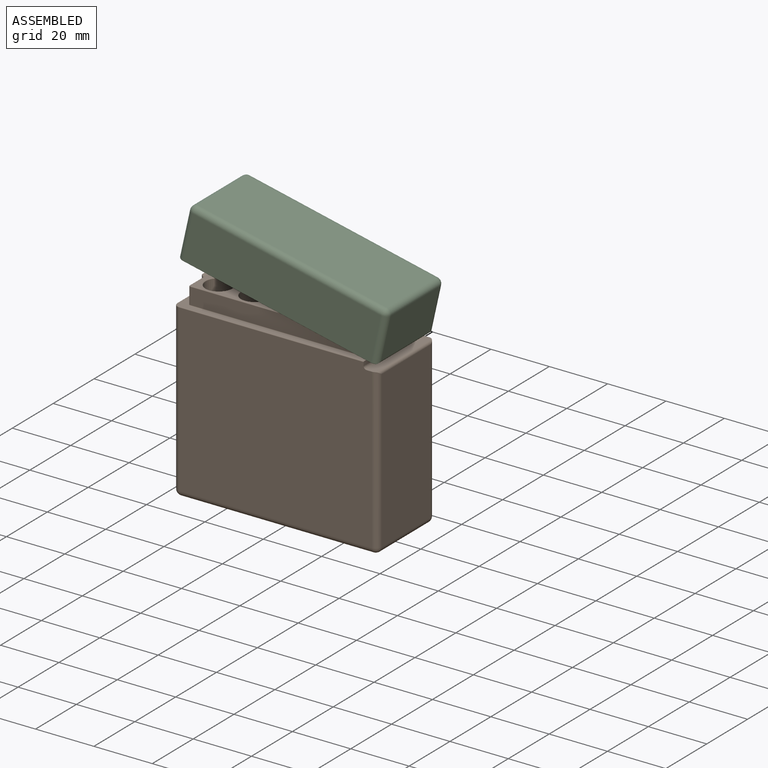
[diagram: assembled view]
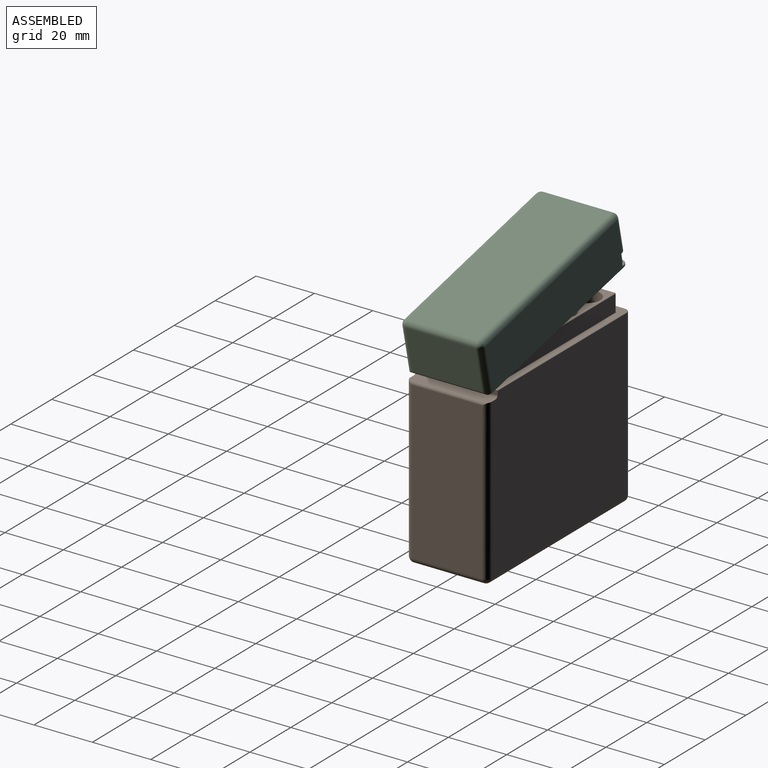
[diagram: assembled view, second angle]
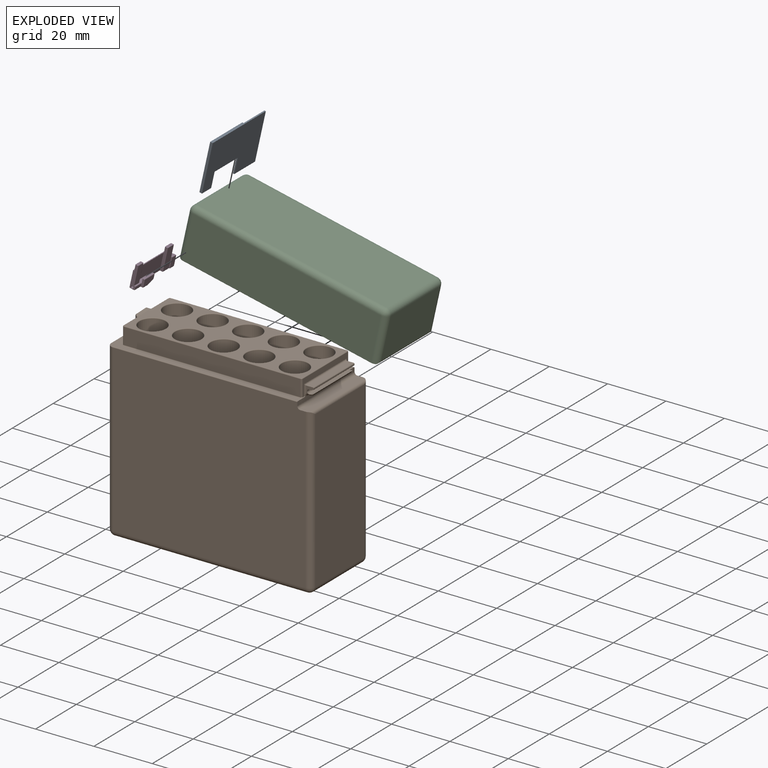
[diagram: exploded view]
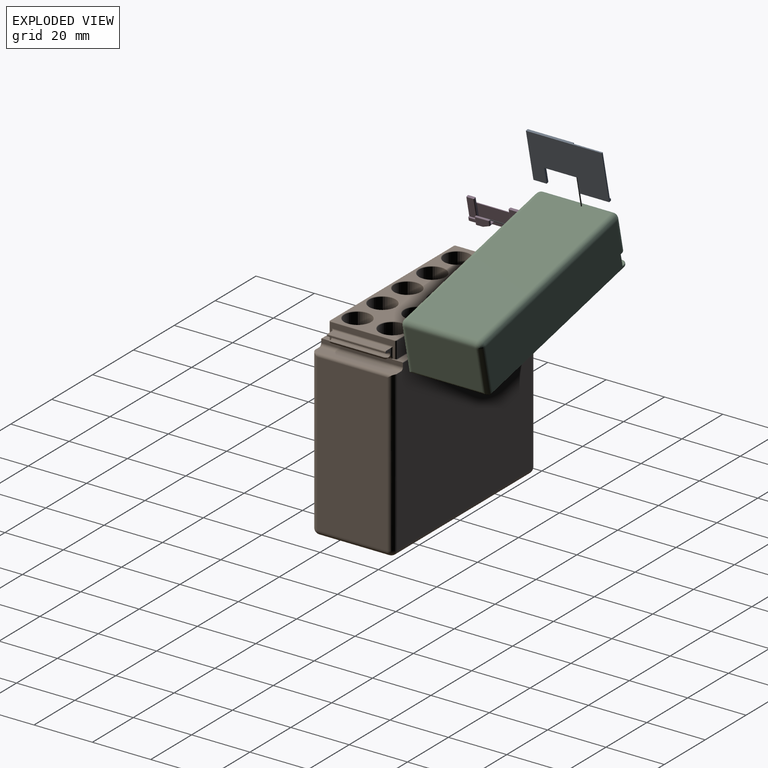
[diagram: exploded view, second angle]
ASSEMBLY  parts=4 mates=3
PART A: 15 faces, bbox 0.9x26x17 mm
  f0: plane 17x10.2mm, normal (-1,0,0), area 172.6mm2, adj f1,f4,f5,f6,f11,f13,f14
  f1: plane 17x0.9mm, normal (0,1,0), area 8.4mm2, adj f0,f5,f6,f9,f12,f13
  f2: plane 5.5x0.9mm, normal (0,1,0), area 5mm2, adj f3,f8,f9,f10
  f3: plane 11.3x0.9mm, normal (0,0,-1), area 10.2mm2, adj f2,f4,f9,f10,f11
  f4: plane 5.5x0.47mm, normal (0,-1,0), area 2.6mm2, adj f0,f3,f5,f9
  f5: plane 10.2x0.9mm, normal (0,0,-1), area 5.3mm2, adj f0,f1,f4,f9,f12,f14
  f6: plane 26x0.9mm, normal (0,0,1), area 19.1mm2, adj f0,f1,f7,f9,f10,f11
  f7: plane 17x0.9mm, normal (0,-1,0), area 15.3mm2, adj f6,f8,f9,f10
  f8: plane 4.5x0.9mm, normal (0,0,-1), area 4mm2, adj f2,f7,f9,f10
  f9: plane 26x17mm, normal (1,0,0), area 379.8mm2, adj f1,f2,f3,f4,f5,f6,f7,f8
  f10: plane 17x15.8mm, normal (-1,0,0), area 206.5mm2, adj f2,f3,f6,f7,f8,f11
  f11: plane 11.5x0.43mm, normal (0,1,0), area 4.9mm2, adj f0,f3,f6,f10
  f12: plane 1x0.8mm, normal (-1,0,0), area 0.8mm2, adj f1,f5,f13,f14
  f13: plane 1x0.43mm, normal (0,0,1), area 0.4mm2, adj f0,f1,f12,f14
  f14: plane 0.8x0.43mm, normal (0,-1,0), area 0.3mm2, adj f0,f5,f12,f13
PART B: 162 faces, bbox 70.9x29.1x65.7 mm
  f0: plane 66x56.8mm, normal (0,-1,0), area 3742.9mm2, adj f59,f64,f65,f72,f149,f150,f153
  f1: plane 20.64x1.75mm, normal (-0.21,0,0.98), area 20.3mm2, adj f52,f152,f154,f155,f156,f158
  f2: plane 2.5x2.1mm, normal (0,-1,0), area 2.8mm2, adj f5,f52,f53,f54,f55,f56,f97,f155
  f3: plane 2.5x2.1mm, normal (0,1,0), area 2.8mm2, adj f4,f52,f53,f54,f55,f56,f97,f154
  f4: cylinder r=0.5mm len=3.8mm, axis (0,0,-1), area 2.6mm2, adj f3,f12,f98,f99,f153,f161
  f5: cylinder r=0.5mm len=3.8mm, axis (0,0,1), area 2.6mm2, adj f2,f12,f99,f100,f153,f159
  f6: bspline ~0.54x0.54mm, area 0.1mm2, adj f77,f78,f101
  f7: bspline ~0.54x0.54mm, area 0.1mm2, adj f74,f75,f104
  f8: bspline ~0.54x0.54mm, area 0.1mm2, adj f76,f77,f107
  f9: bspline ~0.54x0.54mm, area 0.1mm2, adj f75,f76,f110
  f10: plane 62.72x22.6mm, normal (0,0,1), area 688.1mm2, adj f79,f80,f81,f82,f83,f84,f85,f86
  f11: plane 65x27.6mm, normal (0,0,1), area 344.2mm2, adj f69,f70,f71,f72,f73,f75,f76,f77
  f12: plane 22x5.6mm, normal (1,0,0), area 43.4mm2, adj f4,f5,f74,f78,f81,f99,f102,f105
  f13: plane 2.6x2.1mm, normal (0,1,0), area 3.3mm2, adj f82,f114,f115,f123,f127,f129,f130
  f14: plane 60.5x5.6mm, normal (0,-1,0), area 338.8mm2, adj f75,f83,f105,f111
  f15: plane 56.8x24mm, normal (-1,0,0), area 1363.2mm2, adj f57,f58,f59,f71
  f16: plane 53.6x24mm, normal (1,0,0), area 1286.4mm2, adj f62,f65,f68,f151
  f17: plane 66x56.8mm, normal (0,1,0), area 3742.9mm2, adj f57,f62,f63,f69,f149,f150,f153
  f18: cylinder r=4.5mm len=59.8mm, axis (0,0,-1), area 1690.8mm2, adj f28,f96
  f19: cylinder r=4.5mm len=59.8mm, axis (0,0,-1), area 1690.8mm2, adj f29,f95
  f20: cylinder r=4.5mm len=59.8mm, axis (0,0,-1), area 1690.8mm2, adj f30,f94
  f21: cylinder r=4.5mm len=59.8mm, axis (0,0,-1), area 1690.8mm2, adj f31,f93
  f22: cylinder r=4.5mm len=59.8mm, axis (0,0,-1), area 1690.8mm2, adj f32,f92
  f23: cylinder r=4.5mm len=59.8mm, axis (0,0,-1), area 1690.8mm2, adj f33,f91
  f24: cylinder r=4.5mm len=59.8mm, axis (0,0,-1), area 1690.8mm2, adj f34,f90
  f25: cylinder r=4.5mm len=59.8mm, axis (0,0,-1), area 1690.8mm2, adj f35,f89
  f26: cylinder r=4.5mm len=59.8mm, axis (0,0,-1), area 1690.8mm2, adj f36,f88
  f27: cylinder r=4.5mm len=59.8mm, axis (0,0,-1), area 1690.8mm2, adj f37,f87
  f28: plane 9x9mm, normal (0,0,1), area 63.6mm2, adj f18
  f29: plane 9x9mm, normal (0,0,1), area 63.6mm2, adj f19
  f30: plane 9x9mm, normal (0,0,1), area 63.6mm2, adj f20
  f31: plane 9x9mm, normal (0,0,1), area 63.6mm2, adj f21
  f32: plane 9x9mm, normal (0,0,1), area 63.6mm2, adj f22
  f33: plane 9x9mm, normal (0,0,1), area 63.6mm2, adj f23
  f34: plane 9x9mm, normal (0,0,1), area 63.6mm2, adj f24
  f35: plane 9x9mm, normal (0,0,1), area 63.6mm2, adj f25
  f36: plane 9x9mm, normal (0,0,1), area 63.6mm2, adj f26
  f37: plane 9x9mm, normal (0,0,1), area 63.6mm2, adj f27
  f38: plane 66x24mm, normal (0,0,-1), area 1584mm2, adj f58,f63,f64,f68
  f39: plane 60.5x5.6mm, normal (0,1,0), area 338.8mm2, adj f77,f79,f102,f108
  f40: plane 22x5.6mm, normal (-1,0,0), area 115.9mm2, adj f76,f80,f85,f108,f111,f129,f134,f137
  f41: plane 4.68x1.1mm, normal (0,0,-1), area 4.7mm2, adj f43,f51,f116,f117,f123
  f42: plane 3.72x1.72mm, normal (-1,0,0), area 6.4mm2, adj f115,f117,f121,f122
  f43: plane 4.34x1.5mm, normal (1,0,0), area 6.5mm2, adj f41,f44,f50,f51,f127
  f44: plane 4.3x1mm, normal (0,0,-1), area 4.3mm2, adj f43,f50,f130,f137
  f45: plane 3.74x0.88mm, normal (-0.71,0,0.71), area 3.3mm2, adj f84,f114,f122,f128,f132,f133
  f46: plane 1.24x0.11mm, normal (0,-0.71,0.71), area 0.2mm2, adj f50,f138,f142,f143
  f47: plane 0.84x0.84mm, normal (-0.58,-0.58,0.58), area 0.2mm2, adj f132,f135,f138,f139
  f48: plane 1.74x0.94mm, normal (-0.71,-0.71,0), area 2.3mm2, adj f51,f116,f121,f128,f135
  f49: plane 3.77x2.18mm, normal (0,-0.22,0.98), area 6.1mm2, adj f86,f133,f139,f143,f145,f146
  f50: cylinder r=0.5mm len=1.3mm, axis (1,0,0), area 0.9mm2, adj f43,f44,f46,f51,f135,f138,f140
  f51: cylinder r=0.5mm len=1.97mm, axis (0,0,-1), area 0.9mm2, adj f41,f43,f48,f50,f116,f135
  f52: cylinder r=0.75mm len=20mm, axis (0,1,0), area 58.3mm2, adj f1,f2,f3,f53,f154,f155
  f53: plane 20x0.98mm, normal (0.34,0,-0.94), area 20.9mm2, adj f2,f3,f52,f97
  f54: plane 20x0.26mm, normal (1,0,0), area 5.2mm2, adj f2,f3,f55,f97
  f55: cylinder r=0.3mm len=20mm, axis (0,1,0), area 9.4mm2, adj f2,f3,f54,f56
  f56: plane 20x2.2mm, normal (0,0,1), area 44mm2, adj f2,f3,f55,f99
  f57: cylinder r=2mm len=56.8mm, axis (0,0,1), area 178.4mm2, adj f15,f17,f60,f70
  f58: cylinder r=2mm len=24mm, axis (0,1,0), area 75.4mm2, adj f15,f38,f60,f61
  f59: cylinder r=2mm len=56.8mm, axis (0,0,-1), area 178.4mm2, adj f0,f15,f61,f73
  f60: sphere r=2mm, area 8.6mm2, adj f57,f58,f63
  f61: sphere r=2mm, area 6.3mm2, adj f58,f59,f64
  f62: cylinder r=2mm len=54.6mm, axis (0,0,-1), area 170.5mm2, adj f16,f17,f66,f150,f151
  f63: cylinder r=2mm len=66mm, axis (1,0,0), area 207.3mm2, adj f17,f38,f60,f66
  f64: cylinder r=2mm len=66mm, axis (-1,0,0), area 207.3mm2, adj f0,f38,f61,f67
  f65: cylinder r=2mm len=54.6mm, axis (0,0,1), area 170.5mm2, adj f0,f16,f67,f150,f151
  f66: sphere r=2mm, area 4mm2, adj f62,f63,f68
  f67: sphere r=2mm, area 6.3mm2, adj f64,f65,f68
  f68: cylinder r=2mm len=24mm, axis (0,-1,0), area 75.4mm2, adj f16,f38,f66,f67
  f69: cylinder r=0.2mm len=63.2mm, axis (1,0,0), area 19.9mm2, adj f11,f17,f70,f153
  f70: torus R=1.8mm, axis (0,0,1), area 1mm2, adj f11,f57,f69,f71
  f71: cylinder r=0.2mm len=24mm, axis (0,-1,0), area 7.5mm2, adj f11,f15,f70,f73
  f72: cylinder r=0.2mm len=63.2mm, axis (-1,0,0), area 19.9mm2, adj f0,f11,f73,f153
  f73: torus R=1.8mm, axis (0,0,1), area 1mm2, adj f11,f59,f71,f72
  f74: cylinder r=0.2mm len=1.2mm, axis (0,-1,0), area 0.2mm2, adj f7,f12,f100,f104,f153
  f75: cylinder r=0.2mm len=61.9mm, axis (-1,0,0), area 19.2mm2, adj f7,f9,f11,f14,f104,f110
  f76: cylinder r=0.2mm len=23.4mm, axis (0,1,0), area 7.1mm2, adj f8,f9,f11,f40,f107,f110
  f77: cylinder r=0.2mm len=61.9mm, axis (1,0,0), area 19.2mm2, adj f6,f8,f11,f39,f101,f107
  f78: cylinder r=0.2mm len=1.2mm, axis (0,-1,0), area 0.2mm2, adj f6,f12,f98,f101,f153
  f79: cylinder r=0.2mm len=60.5mm, axis (1,0,0), area 19mm2, adj f10,f39,f103,f109
  f80: cylinder r=0.2mm len=8.7mm, axis (0,-1,0), area 2.7mm2, adj f10,f40,f109,f126
  f81: cylinder r=0.2mm len=22mm, axis (0,1,0), area 6.9mm2, adj f10,f12,f103,f106
  f82: cylinder r=0.2mm len=1.62mm, axis (1,0,0), area 0.4mm2, adj f10,f13,f113,f126
  f83: cylinder r=0.2mm len=60.5mm, axis (1,0,0), area 19mm2, adj f10,f14,f106,f112
  f84: cylinder r=0.2mm len=0.78mm, axis (0,-1,0), area 0.1mm2, adj f10,f45,f113,f125
  f85: cylinder r=0.2mm len=12.52mm, axis (0,-1,0), area 3.7mm2, adj f10,f40,f112,f146,f147
  f86: cylinder r=0.2mm len=1.62mm, axis (1,0,0), area 0.1mm2, adj f10,f49,f125,f147
  f87: torus R=4.7mm, axis (0,0,1), area 9mm2, adj f10,f27
  f88: torus R=4.7mm, axis (0,0,1), area 9mm2, adj f10,f26
  f89: torus R=4.7mm, axis (0,0,1), area 9mm2, adj f10,f25
  f90: torus R=4.7mm, axis (0,0,1), area 9mm2, adj f10,f24
  f91: torus R=4.7mm, axis (0,0,1), area 9mm2, adj f10,f23
  f92: torus R=4.7mm, axis (0,0,1), area 9mm2, adj f10,f22
  f93: torus R=4.7mm, axis (0,0,1), area 9mm2, adj f10,f21
  f94: torus R=4.7mm, axis (0,0,1), area 9mm2, adj f10,f20
  f95: torus R=4.7mm, axis (0,0,1), area 9mm2, adj f10,f19
  f96: torus R=4.7mm, axis (0,0,1), area 9mm2, adj f10,f18
  f97: cylinder r=0.2mm len=20mm, axis (0,1,0), area 4.9mm2, adj f2,f3,f53,f54
  f98: torus R=0.3mm, axis (0,0,1), area 0.1mm2, adj f4,f78,f153
  f99: cylinder r=0.5mm len=21mm, axis (0,1,0), area 16.1mm2, adj f4,f5,f12,f56
  f100: torus R=0.3mm, axis (0,0,1), area 0.1mm2, adj f5,f74,f153
  f101: bspline ~0.56x0.56mm, area 0.1mm2, adj f6,f77,f78,f102
  f102: cylinder r=0.5mm len=5.6mm, axis (0,0,1), area 4.4mm2, adj f12,f39,f101,f103
  f103: torus R=0.3mm, axis (0,0,1), area 0.2mm2, adj f10,f79,f81,f102
  f104: bspline ~0.56x0.56mm, area 0.1mm2, adj f7,f74,f75,f105
  f105: cylinder r=0.5mm len=5.6mm, axis (0,0,1), area 4.4mm2, adj f12,f14,f104,f106
  f106: torus R=0.3mm, axis (0,0,1), area 0.2mm2, adj f10,f81,f83,f105
  f107: bspline ~0.56x0.56mm, area 0.1mm2, adj f8,f76,f77,f108
  f108: cylinder r=0.5mm len=5.6mm, axis (0,0,-1), area 4.4mm2, adj f39,f40,f107,f109
  f109: torus R=0.3mm, axis (0,0,1), area 0.2mm2, adj f10,f79,f80,f108
  f110: bspline ~0.56x0.56mm, area 0.1mm2, adj f9,f75,f76,f111
  f111: cylinder r=0.5mm len=5.6mm, axis (0,0,-1), area 4.4mm2, adj f14,f40,f110,f112
  f112: torus R=0.3mm, axis (0,0,1), area 0.2mm2, adj f10,f83,f85,f111
  f113: sphere r=0.2mm, area 0mm2, adj f82,f84,f114
  f114: cylinder r=0.2mm len=1.02mm, axis (-0.71,0,-0.71), area 0.4mm2, adj f13,f45,f113,f119
  f115: cylinder r=0.2mm len=1.72mm, axis (0,0,-1), area 0.5mm2, adj f13,f42,f119,f120
  f116: cylinder r=0.2mm len=1.11mm, axis (-0.71,0.71,0), area 0.4mm2, adj f41,f48,f51,f118
  f117: cylinder r=0.2mm len=3.72mm, axis (0,-1,0), area 1.2mm2, adj f41,f42,f118,f120
  f118: sphere r=0.2mm, area 0mm2, adj f116,f117,f121
  f119: sphere r=0.2mm, area 0mm2, adj f114,f115,f122
  f120: sphere r=0.2mm, area 0.1mm2, adj f115,f117,f123
  f121: cylinder r=0.2mm len=1.72mm, axis (0,0,-1), area 0.3mm2, adj f42,f48,f118,f124
  f122: cylinder r=0.2mm len=3.72mm, axis (0,-1,0), area 0.6mm2, adj f42,f45,f119,f124
  f123: cylinder r=0.2mm len=1.1mm, axis (1,0,0), area 0.3mm2, adj f13,f41,f120,f127
  f124: sphere r=0.2mm, area 0mm2, adj f121,f122,f128
  f125: sphere r=0.2mm, area 0mm2, adj f84,f86,f133
  f126: bspline ~0.4x0.4mm, area 0mm2, adj f80,f82,f129
  f127: cylinder r=0.2mm len=1.7mm, axis (0,0,1), area 0.5mm2, adj f13,f43,f123,f130
  f128: cylinder r=0.2mm len=0.16mm, axis (-0.58,0.58,-0.58), area 0mm2, adj f45,f48,f124,f131
  f129: cylinder r=0.2mm len=1.1mm, axis (0,0,-1), area 0.3mm2, adj f13,f40,f126,f134
  f130: cylinder r=0.2mm len=1.2mm, axis (1,0,0), area 0.3mm2, adj f13,f44,f127,f134
  f131: sphere r=0.2mm, area 0mm2, adj f128,f132,f135
  f132: cylinder r=0.2mm len=0.24mm, axis (-0.71,0,-0.71), area 0mm2, adj f45,f47,f131,f136
  f133: cylinder r=0.2mm len=3mm, axis (0.21,0.95,0.21), area 0.5mm2, adj f45,f49,f125,f136
  f134: torus R=0.4mm, axis (-1,0,0), area 0.1mm2, adj f40,f129,f130,f137
  f135: cylinder r=0.2mm len=0.95mm, axis (-0.71,0.71,0), area 0.2mm2, adj f47,f48,f50,f51,f131,f138
  f136: sphere r=0.2mm, area 0mm2, adj f132,f133,f139
  f137: cylinder r=0.2mm len=4.3mm, axis (0,-1,0), area 1.4mm2, adj f40,f44,f134,f140
  f138: cylinder r=0.2mm len=0.14mm, axis (0,-0.71,-0.71), area 0mm2, adj f46,f47,f50,f135,f141
  f139: cylinder r=0.2mm len=0.88mm, axis (-0.61,0.78,0.17), area 0.2mm2, adj f47,f49,f136,f141
  f140: torus R=0.7mm, axis (-1,0,0), area 0.3mm2, adj f40,f50,f137,f142
  f141: sphere r=0.2mm, area 0mm2, adj f138,f139,f143
  f142: cylinder r=0.2mm len=0.3mm, axis (0,-0.71,-0.71), area 0.1mm2, adj f40,f46,f140,f144
  f143: cylinder r=0.2mm len=1.24mm, axis (1,0,0), area 0.1mm2, adj f46,f49,f141,f144
  f144: torus R=0.4mm, axis (-1,0,0), area 0mm2, adj f40,f142,f143,f145
  f145: cylinder r=0.2mm len=2.04mm, axis (0,0.98,0.22), area 0.6mm2, adj f40,f49,f144,f146
  f146: bspline ~1.93x0.42mm, area 0.4mm2, adj f49,f85,f145,f147
  f147: bspline ~0.13x0.13mm, area 0mm2, adj f85,f86,f146
  f148: plane 18x1.09mm, normal (0,0,-1), area 19.6mm2, adj f154,f155,f157,f160
  f149: cylinder r=1mm len=28mm, axis (0,-1,0), area 44mm2, adj f0,f17,f150,f153
  f150: plane 28x2.8mm, normal (0,0,1), area 78.2mm2, adj f0,f17,f62,f65,f149,f151
  f151: cylinder r=1mm len=27.46mm, axis (0,-1,0), area 40.4mm2, adj f16,f62,f65,f150
  f152: plane 19.32x1.19mm, normal (0.87,0,-0.49), area 10mm2, adj f1,f156,f157,f158
  f153: plane 28.23x2.01mm, normal (1,0,0), area 37.5mm2, adj f0,f4,f5,f11,f17,f69,f72,f74
  f154: cylinder r=1mm len=1.2mm, axis (-1,0,0), area 1.5mm2, adj f1,f3,f52,f148,f158,f161
  f155: cylinder r=1mm len=1.2mm, axis (1,0,0), area 1.5mm2, adj f1,f2,f52,f148,f156,f159
  f156: bspline ~2x1.41mm, area 1mm2, adj f1,f152,f155,f157
  f157: cylinder r=0.7mm len=18mm, axis (0,-1,0), area 13.3mm2, adj f148,f152,f156,f158
  f158: bspline ~1.73x1mm, area 1mm2, adj f1,f152,f154,f157
  f159: torus R=1.5mm, axis (-1,0,0), area 1.1mm2, adj f2,f5,f153,f155,f160
  f160: cylinder r=0.5mm len=18mm, axis (0,-1,0), area 14.1mm2, adj f148,f153,f159,f161
  f161: torus R=1.5mm, axis (-1,0,0), area 1.1mm2, adj f3,f4,f153,f154,f160
PART C: 64 faces, bbox 70.2x28.3x18 mm
  f0: plane 17x15.8mm, normal (1,0,0), area 142.8mm2, adj f1,f2,f8,f17,f24,f28,f32,f61
  f1: plane 25.8x2.26mm, normal (0,0,1), area 32.4mm2, adj f0,f11,f12,f17,f23,f26,f46,f56
  f2: plane 68.8x27.6mm, normal (0,0,-1), area 305.1mm2, adj f0,f6,f7,f9,f10,f12,f19,f26
  f3: plane 24x14.97mm, normal (1,0,0), area 359.4mm2, adj f4,f5,f36,f60
  f4: cylinder r=2mm len=15.8mm, axis (0,0,-1), area 49.2mm2, adj f3,f7,f15,f35,f59,f60
  f5: cylinder r=2mm len=15.8mm, axis (0,0,-1), area 49.2mm2, adj f3,f6,f14,f39,f59,f60
  f6: torus R=1.8mm, axis (0,0,-1), area 0.5mm2, adj f2,f5,f47,f59
  f7: torus R=1.8mm, axis (0,0,-1), area 0.5mm2, adj f2,f4,f51,f59
  f8: plane 26x1mm, normal (0,0,-1), area 21.7mm2, adj f0,f26,f27,f28,f31,f32
  f9: plane 65x16mm, normal (0,1,0), area 1038.5mm2, adj f2,f18,f19,f21,f27
  f10: plane 65x16mm, normal (0,-1,0), area 1038.5mm2, adj f2,f18,f19,f21,f27
  f11: plane 4x0.8mm, normal (-1,0,0.01), area 3.2mm2, adj f1,f22,f26,f55
  f12: plane 10.2x0.8mm, normal (1,0,0), area 8.2mm2, adj f1,f2,f26,f63
  f13: plane 24x15.8mm, normal (-1,0,0), area 353.2mm2, adj f38,f42,f44,f45,f46,f49,f52,f58
  f14: plane 66x15.8mm, normal (0,1,0), area 1039.8mm2, adj f5,f41,f44,f45,f47,f54,f55,f56
  f15: plane 66x15.8mm, normal (0,-1,0), area 1042.8mm2, adj f4,f37,f38,f51
  f16: plane 66x24mm, normal (0,0,1), area 1584mm2, adj f36,f37,f41,f42
  f17: plane 8.2x1.4mm, normal (0,1,0), area 10.7mm2, adj f0,f1,f23,f24,f25,f29,f33
  f18: plane 65x24mm, normal (0,0,-1), area 1560mm2, adj f9,f10,f19,f27
  f19: plane 24x16mm, normal (-1,0,0), area 384mm2, adj f2,f9,f10,f18
  f20: plane 4.2x1.63mm, normal (0,-1,0), area 6.8mm2, adj f22,f24,f25,f31
  f21: cylinder r=0.7mm len=24mm, axis (0,-1,0), area 105.6mm2, adj f9,f10
  f22: plane 7.12x2.3mm, normal (0,0,-1), area 6mm2, adj f11,f20,f23,f25,f26,f31,f34,f46
  f23: plane 21.2x6.2mm, normal (1,0,0), area 122.6mm2, adj f1,f17,f22,f33,f34,f46
  f24: plane 24x1.63mm, normal (0,0,-1), area 32.7mm2, adj f0,f17,f20,f25,f31,f32
  f25: plane 24x4.2mm, normal (1,0,0), area 54.2mm2, adj f17,f20,f22,f24,f33,f34
  f26: plane 17x1mm, normal (0,-1,0), area 9.9mm2, adj f1,f2,f8,f11,f12,f22,f27,f31
  f27: plane 26x17mm, normal (-1,0,0), area 58mm2, adj f2,f8,f9,f10,f18,f26,f28
  f28: plane 17x1mm, normal (0,1,0), area 17mm2, adj f0,f2,f8,f27
  f29: cylinder r=0.35mm len=6mm, axis (0,-1,0), area 13.2mm2, adj f17,f30
  f30: plane 0.7x0.7mm, normal (0,1,0), area 0.4mm2, adj f29
  f31: plane 12.2x10.2mm, normal (1,0,0), area 85.8mm2, adj f8,f20,f22,f24,f26,f32
  f32: plane 8x0.43mm, normal (0,-1,0), area 3.4mm2, adj f0,f8,f24,f31
  f33: plane 21.2x0.2mm, normal (0,0,-1), area 4.2mm2, adj f17,f23,f25,f34
  f34: plane 2.2x0.2mm, normal (0,-1,0), area 0.4mm2, adj f22,f23,f25,f33
  f35: sphere r=2mm, area 6.3mm2, adj f4,f36,f37
  f36: cylinder r=2mm len=24mm, axis (0,1,0), area 75.4mm2, adj f3,f16,f35,f39
  f37: cylinder r=2mm len=66mm, axis (1,0,0), area 207.3mm2, adj f15,f16,f35,f40
  f38: cylinder r=2mm len=15.8mm, axis (0,0,1), area 49.6mm2, adj f13,f15,f40,f50
  f39: sphere r=2mm, area 6.3mm2, adj f5,f36,f41
  f40: sphere r=2mm, area 6.3mm2, adj f37,f38,f42
  f41: cylinder r=2mm len=66mm, axis (1,0,0), area 207.3mm2, adj f14,f16,f39,f43
  f42: cylinder r=2mm len=24mm, axis (0,-1,0), area 75.4mm2, adj f13,f16,f40,f43
  f43: sphere r=2mm, area 6.3mm2, adj f41,f42,f44
  f44: cylinder r=2mm len=11mm, axis (0,0,1), area 34.6mm2, adj f13,f14,f43,f53
  f45: cylinder r=2mm len=2mm, axis (0,0,1), area 1.3mm2, adj f13,f14,f48,f57
  f46: cylinder r=1mm len=4.4mm, axis (0,0,1), area 4.8mm2, adj f1,f13,f22,f23,f52,f58
  f47: cylinder r=0.2mm len=66mm, axis (-1,0,0), area 20.7mm2, adj f2,f6,f14,f48
  f48: torus R=1.8mm, axis (0,0,-1), area 1mm2, adj f2,f45,f47,f49
  f49: cylinder r=0.2mm len=24mm, axis (0,1,0), area 7.5mm2, adj f2,f13,f48,f50
  f50: torus R=1.8mm, axis (0,0,-1), area 1mm2, adj f2,f38,f49,f51
  f51: cylinder r=0.2mm len=66mm, axis (-1,0,0), area 20.7mm2, adj f2,f7,f15,f50
  f52: cylinder r=0.2mm len=5.92mm, axis (0,1,0), area 1.8mm2, adj f13,f22,f46,f53
  f53: torus R=1.8mm, axis (0,0,-1), area 1mm2, adj f22,f44,f52,f54
  f54: cylinder r=0.2mm len=0.7mm, axis (-1,0,0), area 0.2mm2, adj f14,f22,f53,f55
  f55: cylinder r=0.2mm len=4.4mm, axis (0.01,0,1), area 1.3mm2, adj f11,f14,f54,f56
  f56: cylinder r=0.2mm len=0.65mm, axis (1,0,0), area 0.2mm2, adj f1,f14,f55,f57
  f57: torus R=1.8mm, axis (0,0,1), area 1mm2, adj f1,f45,f56,f58
  f58: cylinder r=0.2mm len=5.92mm, axis (0,1,0), area 1.8mm2, adj f1,f13,f46,f57
  f59: cylinder r=1mm len=26.99mm, axis (0,-1,0), area 41.3mm2, adj f2,f4,f5,f6,f7,f60
  f60: plane 24.07x0mm, normal (0,0,-1), area 0mm2, adj f3,f4,f5,f59
  f61: plane 1.1x0.8mm, normal (0,1,0), area 0.9mm2, adj f0,f1,f2,f62
  f62: plane 5.6x0.8mm, normal (1,0,0), area 4.5mm2, adj f1,f2,f61,f63
  f63: plane 1.1x0.8mm, normal (0,-1,0), area 0.9mm2, adj f1,f2,f12,f62
PART D: 66 faces, bbox 3.3x19.6x8.1 mm
  f0: plane 2.3x2mm, normal (-1,0,0), area 4.6mm2, adj f22,f30,f36,f40
  f1: plane 2.8x2mm, normal (-1,0,0), area 5.6mm2, adj f24,f25,f30,f34
  f2: plane 11.8x6mm, normal (1,0,0), area 65.2mm2, adj f7,f9,f20,f27,f30,f33,f44,f58
  f3: plane 19.12x6mm, normal (-1,0,0), area 105.2mm2, adj f7,f14,f17,f25,f30,f31,f32,f65
  f4: plane 1.8x0.1mm, normal (1,0,0), area 0.2mm2, adj f7,f16,f23,f32
  f5: plane 2.5x0.6mm, normal (0,-1,0), area 1.2mm2, adj f13,f45,f47,f50,f52,f61
  f6: plane 3.7x0.45mm, normal (0,1,0), area 1.7mm2, adj f15,f16,f18,f32
  f7: plane 19.1x2.4mm, normal (0,0,-1), area 17.3mm2, adj f2,f3,f4,f23,f26,f27,f32,f35
  f8: plane 1.56x0.4mm, normal (0,1,0), area 0.6mm2, adj f46,f56,f59,f60
  f9: plane 7.8x1.5mm, normal (0,0,1), area 8.4mm2, adj f2,f10,f14,f20,f21,f37,f38,f58
  f10: plane 4.6x1.4mm, normal (-1,0,0), area 6.4mm2, adj f9,f45,f55,f60
  f11: plane 4.6x0.4mm, normal (0,0,1), area 1.8mm2, adj f46,f47,f48,f55
  f12: plane 4.6x2.5mm, normal (1,0,0), area 10.4mm2, adj f41,f42,f48,f50,f56
  f13: plane 2.8x0.9mm, normal (1,0,0), area 2.5mm2, adj f5,f39,f62,f63
  f14: plane 7.8x1.6mm, normal (0,-1,0), area 7.5mm2, adj f3,f9,f22,f28,f30,f38,f40,f63
  f15: plane 3.7x2mm, normal (1,0,0), area 7.4mm2, adj f6,f16,f18,f19
  f16: plane 2x1.33mm, normal (0,0,-1), area 2.6mm2, adj f4,f6,f15,f19,f23,f32
  f17: plane 1.62x0.6mm, normal (0,0,-1), area 0.6mm2, adj f3,f31,f32
  f18: plane 2.23x2mm, normal (0,0,1), area 3.7mm2, adj f6,f15,f19,f25,f31,f32
  f19: plane 3.7x0.33mm, normal (0,-1,0), area 1.2mm2, adj f15,f16,f18,f26
  f20: plane 6.7x0.8mm, normal (0,1,0), area 5mm2, adj f2,f9,f22,f30,f36,f37
  f21: plane 6.7x2.3mm, normal (1,0,0), area 15.4mm2, adj f9,f22,f37,f38
  f22: plane 2.7x1mm, normal (0,0,1), area 2.7mm2, adj f0,f14,f20,f21,f36,f37,f38,f40
  f23: plane 1x0.1mm, normal (0,1,0), area 0.1mm2, adj f4,f7,f16,f26
  f24: plane 3x1mm, normal (0,0,1), area 3mm2, adj f1,f25,f26,f27,f34,f35
  f25: plane 4.2x1.3mm, normal (0,1,0), area 4.9mm2, adj f1,f3,f18,f24,f26,f30
  f26: plane 8x2.8mm, normal (1,0,0), area 22.4mm2, adj f7,f19,f23,f24,f25,f35
  f27: plane 8x0.8mm, normal (0,-1,0), area 6mm2, adj f2,f7,f24,f30,f34,f35
  f28: cylinder r=0.45mm len=2mm, axis (0,-1,0), area 5.7mm2, adj f14,f29
  f29: plane 0.9x0.9mm, normal (0,-1,0), area 0.6mm2, adj f28
  f30: plane 17.5x0.5mm, normal (0,0,1), area 5.3mm2, adj f0,f1,f2,f3,f14,f20,f25,f27
  f31: cylinder r=1mm len=3.7mm, axis (0,0,1), area 4.3mm2, adj f3,f17,f18,f32
  f32: cylinder r=2mm len=3.8mm, axis (0,0,1), area 8.1mm2, adj f3,f4,f6,f7,f16,f17,f18,f31
  f33: plane 2.34x2.1mm, normal (0,0.37,-0.93), area 5.3mm2, adj f2,f42,f44,f59
  f34: cylinder r=0.2mm len=2mm, axis (0,0,-1), area 0.6mm2, adj f1,f24,f27,f30
  f35: cylinder r=0.2mm len=8mm, axis (0,0,1), area 2.5mm2, adj f7,f24,f26,f27
  f36: cylinder r=0.2mm len=2mm, axis (0,0,1), area 0.6mm2, adj f0,f20,f22,f30
  f37: cylinder r=0.2mm len=6.7mm, axis (0,0,-1), area 2.1mm2, adj f9,f20,f21,f22
  f38: cylinder r=0.2mm len=6.7mm, axis (0,0,-1), area 2.1mm2, adj f9,f14,f21,f22
  f39: cylinder r=0.2mm len=3mm, axis (0,1,0), area 0.9mm2, adj f7,f13,f52,f64
  f40: cylinder r=0.2mm len=2mm, axis (0,0,1), area 0.6mm2, adj f0,f14,f22,f30
  f41: cylinder r=0.2mm len=2.26mm, axis (0,1,0), area 0.7mm2, adj f7,f12,f43,f51
  f42: plane 2.61x1.22mm, normal (0.71,0.26,-0.66), area 0.7mm2, adj f12,f33,f43,f56,f59
  f43: bspline ~0.2x0.2mm, area 0mm2, adj f41,f42,f44
  f44: plane 2.1x0.07mm, normal (0,0.19,-0.98), area 0.2mm2, adj f2,f7,f33,f43
  f45: cylinder r=0.2mm len=1.6mm, axis (0,0,1), area 0.5mm2, adj f5,f10,f53,f61
  f46: cylinder r=0.2mm len=0.4mm, axis (1,0,0), area 0.1mm2, adj f8,f11,f54,f57
  f47: cylinder r=0.2mm len=0.4mm, axis (1,0,0), area 0.1mm2, adj f5,f11,f49,f53
  f48: cylinder r=0.2mm len=4.6mm, axis (0,-1,0), area 1.4mm2, adj f11,f12,f49,f54
  f49: sphere r=0.2mm, area 0mm2, adj f47,f48,f50
  f50: cylinder r=0.2mm len=2.5mm, axis (0,0,-1), area 0.8mm2, adj f5,f12,f49,f51
  f51: sphere r=0.2mm, area 0mm2, adj f41,f50,f52
  f52: cylinder r=0.2mm len=0.8mm, axis (1,0,0), area 0.2mm2, adj f5,f7,f39,f51
  f53: sphere r=0.2mm, area 0.1mm2, adj f45,f47,f55
  f54: sphere r=0.2mm, area 0mm2, adj f46,f48,f56
  f55: cylinder r=0.2mm len=4.6mm, axis (0,1,0), area 1.4mm2, adj f10,f11,f53,f57
  f56: cylinder r=0.2mm len=1.63mm, axis (0,0,-1), area 0.5mm2, adj f8,f12,f42,f54,f59
  f57: sphere r=0.2mm, area 0.1mm2, adj f46,f55,f60
  f58: cylinder r=0.2mm len=1.68mm, axis (1,0,0), area 0.5mm2, adj f2,f9,f59,f60
  f59: cylinder r=0.2mm len=2.17mm, axis (1,0,0), area 0.5mm2, adj f2,f8,f33,f42,f56,f58,f60
  f60: cylinder r=0.2mm len=1.58mm, axis (0,0,1), area 0.5mm2, adj f8,f10,f57,f58,f59
  f61: cylinder r=0.2mm len=0.4mm, axis (1,0,0), area 0.1mm2, adj f5,f9,f45,f62
  f62: cylinder r=0.2mm len=3.2mm, axis (0,-1,0), area 0.9mm2, adj f9,f13,f61,f63
  f63: cylinder r=0.2mm len=1.1mm, axis (0,0,-1), area 0.3mm2, adj f13,f14,f62,f64
  f64: sphere r=0.2mm, area 0mm2, adj f39,f63,f65
  f65: cylinder r=0.2mm len=1.6mm, axis (1,0,0), area 0.5mm2, adj f3,f7,f14,f64
PLACE A rot(axis=(0,1,0),12.5deg) t=(-11.35,0,8.17)mm
PLACE B at identity fixed
PLACE C rot(axis=(0,1,0),12.5deg) t=(-11.35,0,8.17)mm
PLACE D rot(axis=(0,1,0),12.5deg) t=(-11.25,-0.83,8.04)mm
MATE fastened A.f8 <-> C.f2  axis (-0.22,0,-0.98) through (-31.73,-13,68.53)mm
MATE revolute C.f21 <-> B.f52  axis (0,-1,0) through (31.5,12,55.75)mm
MATE slider D.f19 <-> C.f26  axis (0,-1,0) through (-31.12,11.17,69.21)mm
